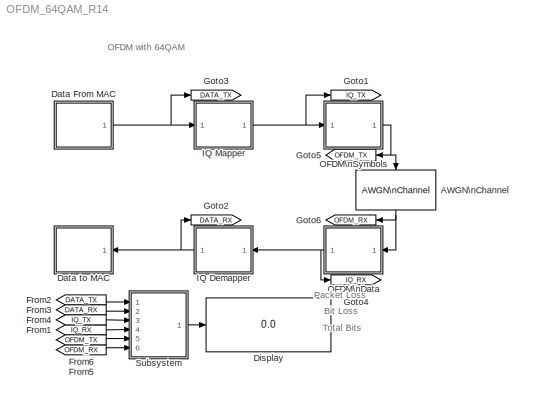
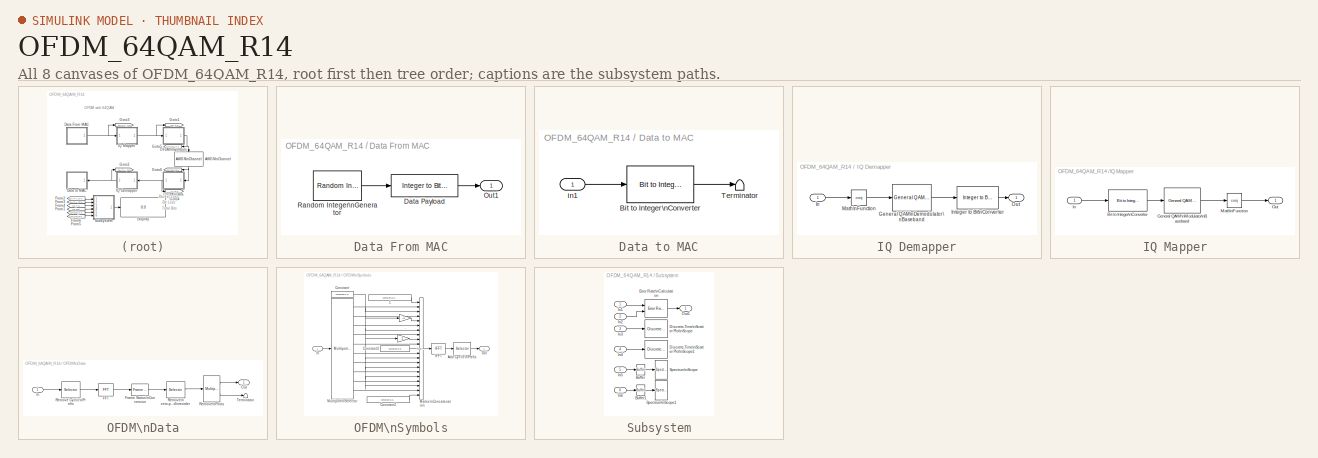
[diagram: thumbnail index - all 8 canvases of the model, root first then tree order]
MODEL OFDM_64QAM_R14
KIND model
BLOCK [Reference] AWGN\nChannel  REF=commchan2/AWGN\nChannel
  EbNodB = 10
  EsNodB = 40
  FunctionWithSeparateData = off
  Ports = [1, 1]
  Ps = 0.01
  RTWMemSecDataConstants = Inherit from model
  RTWMemSecDataInternal = Inherit from model
  RTWMemSecDataParameters = Inherit from model
  RTWMemSecFuncExecute = Inherit from model
  RTWMemSecFuncInitTerm = Inherit from model
  SID = 1
  SNRdB = 60
  ShowPortLabels = FromPortIcon
  SourceBlock = commchan2/AWGN\nChannel
  SourceProductBaseCode = CM
  SourceProductName = Communications Toolbox
  SourceType = AWGN Channel
  SystemSampleTime = -1
  Tsym = 4e-6/80
  bitsPerSym = 2
  noiseMode = Signal to noise ratio  (SNR)
  seed = 1
  variance = 1
BLOCK [SubSystem] Data From MAC
  Ports = [0, 1]
  RequestExecContextInheritance = off
  SID = 2
BLOCK [Reference] Data From MAC/Data Payload  REF=commutil2/Integer to Bit\nConverter
  Ports = [1, 1]
  SID = 3
  SourceBlock = commutil2/Integer to Bit\nConverter
  SourceProductBaseCode = CM
  SourceProductName = Communications Toolbox
  SourceType = Integer to Bit Converter
  nbits = 6
BLOCK [Outport] Data From MAC/Out1
  IconDisplay = Port number
  SID = 5
BLOCK [Reference] Data From MAC/Random Integer\nGenerator  REF=commrandsrc2/Random Integer\nGenerator
  FunctionWithSeparateData = off
  Ports = [0, 1]
  RTWMemSecDataConstants = Inherit from model
  RTWMemSecDataInternal = Inherit from model
  RTWMemSecDataParameters = Inherit from model
  RTWMemSecFuncExecute = Inherit from model
  RTWMemSecFuncInitTerm = Inherit from model
  SID = 4
  ShowPortLabels = FromPortIcon
  SourceBlock = commrandsrc2/Random Integer\nGenerator
  SourceProductBaseCode = CM
  SourceProductName = Communications Toolbox
  SourceType = Random Integer Generator
  SystemSampleTime = -1
  Ts = 1/192
  frameBased = on
  mul = 32
  orient = off
  sampPerFrame = 192
  seed = 37
BLOCK [SubSystem] Data to MAC
  Ports = [1]
  RequestExecContextInheritance = off
  SID = 6
BLOCK [Reference] Data to MAC/Bit to Integer\nConverter  REF=commutil2/Bit to Integer\nConverter
  Ports = [1, 1]
  SID = 8
  SourceBlock = commutil2/Bit to Integer\nConverter
  SourceProductBaseCode = CM
  SourceProductName = Communications Toolbox
  SourceType = Bit to Integer Converter
  nbits = 6
BLOCK [Terminator] Data to MAC/Terminator
  SID = 9
BLOCK [Inport] Data to MAC/in1
  IconDisplay = Port number
  SID = 7
BLOCK [Display] Display
  Decimation = 1
  Format = long
  Ports = [1]
  SID = 10
BLOCK [From] From1
  CloseFcn = tagdialog Close
  GotoTag = IQ_RX
  IconDisplay = Signal name
  SID = 11
BLOCK [From] From2
  CloseFcn = tagdialog Close
  GotoTag = DATA_TX
  IconDisplay = Signal name
  SID = 12
BLOCK [From] From3
  CloseFcn = tagdialog Close
  GotoTag = DATA_RX
  IconDisplay = Signal name
  SID = 13
BLOCK [From] From4
  CloseFcn = tagdialog Close
  GotoTag = IQ_TX
  IconDisplay = Signal name
  SID = 14
BLOCK [From] From5
  CloseFcn = tagdialog Close
  GotoTag = OFDM_RX
  IconDisplay = Signal name
  SID = 15
BLOCK [From] From6
  CloseFcn = tagdialog Close
  GotoTag = OFDM_TX
  IconDisplay = Signal name
  SID = 16
BLOCK [Goto] Goto1
  GotoTag = IQ_TX
  IconDisplay = Signal name
  SID = 17
  TagVisibility = global
BLOCK [Goto] Goto2
  GotoTag = DATA_RX
  IconDisplay = Signal name
  SID = 18
  TagVisibility = global
BLOCK [Goto] Goto3
  GotoTag = DATA_TX
  IconDisplay = Signal name
  SID = 19
  TagVisibility = global
BLOCK [Goto] Goto4
  GotoTag = IQ_RX
  IconDisplay = Signal name
  SID = 20
  TagVisibility = global
BLOCK [Goto] Goto5
  GotoTag = OFDM_TX
  IconDisplay = Signal name
  SID = 21
  TagVisibility = global
BLOCK [Goto] Goto6
  GotoTag = OFDM_RX
  IconDisplay = Signal name
  SID = 22
  TagVisibility = global
BLOCK [SubSystem] IQ Demapper
  Ports = [1, 1]
  RequestExecContextInheritance = off
  SID = 23
BLOCK [Reference] IQ Demapper/General QAM\nDemodulator\nBaseband  REF=commdigbbndam2/General QAM\nDemodulator\nBaseband
  Ports = [1, 1]
  SID = 25
  SigCon = [0.4629 + 0.4629i    0.4629 + 0.1543i    0.4629 + 0.7715i    0.4629 + 1.0801i    0.4629 - 0.4629i    0.4629 - 0.1543i    0.4629 - 0.7715i    0.4629 - 1.0801i    0.1543 + 0.4629i    0.1543 + 0.1543i    0.1543 + 0.7715i    0.1543 + 1.0801i    0.1543 - 0.4629i    0.1543 - 0.1543i    0.1543 - 0.7715i    0.1543 - 1.0801i    0.7715 + 0.4629i    0.7715 + 0.1543i    0.7715 + 0.7715i    0.7715 + 1.0801i   ...<+879ch>
  SourceBlock = commdigbbndam2/General QAM\nDemodulator\nBaseband
  SourceType = General QAM Demodulator Baseband
  numSamp = 1
BLOCK [Inport] IQ Demapper/In
  IconDisplay = Port number
  SID = 24
BLOCK [Reference] IQ Demapper/Integer to Bit\nConverter  REF=commutil2/Integer to Bit\nConverter
  Ports = [1, 1]
  SID = 26
  SourceBlock = commutil2/Integer to Bit\nConverter
  SourceProductBaseCode = CM
  SourceProductName = Communications Toolbox
  SourceType = Integer to Bit Converter
  nbits = 6
BLOCK [Math] IQ Demapper/Math\nFunction
  Operator = conj
  Ports = [1, 1]
  SID = 27
BLOCK [Outport] IQ Demapper/Out
  IconDisplay = Port number
  SID = 28
BLOCK [SubSystem] IQ Mapper
  Ports = [1, 1]
  RequestExecContextInheritance = off
  SID = 29
BLOCK [Reference] IQ Mapper/Bit to Integer\nConverter  REF=commutil2/Bit to Integer\nConverter
  Ports = [1, 1]
  SID = 31
  SourceBlock = commutil2/Bit to Integer\nConverter
  SourceProductBaseCode = CM
  SourceProductName = Communications Toolbox
  SourceType = Bit to Integer Converter
  nbits = 6
BLOCK [Reference] IQ Mapper/General QAM\nModulator\nBaseband  REF=commdigbbndam2/General QAM\nModulator\nBaseband
  Ports = [1, 1]
  SID = 32
  SigCon = [0.4629 + 0.4629i    0.4629 + 0.1543i    0.4629 + 0.7715i    0.4629 + 1.0801i    0.4629 - 0.4629i    0.4629 - 0.1543i    0.4629 - 0.7715i    0.4629 - 1.0801i    0.1543 + 0.4629i    0.1543 + 0.1543i    0.1543 + 0.7715i    0.1543 + 1.0801i    0.1543 - 0.4629i    0.1543 - 0.1543i    0.1543 - 0.7715i    0.1543 - 1.0801i    0.7715 + 0.4629i    0.7715 + 0.1543i    0.7715 + 0.7715i    0.7715 + 1.0801i   ...<+879ch>
  SourceBlock = commdigbbndam2/General QAM\nModulator\nBaseband
  SourceType = General QAM Modulator Baseband
  numSamp = 1
BLOCK [Inport] IQ Mapper/In
  IconDisplay = Port number
  SID = 30
BLOCK [Math] IQ Mapper/Math\nFunction
  Operator = conj
  Ports = [1, 1]
  SID = 33
BLOCK [Outport] IQ Mapper/Out
  IconDisplay = Port number
  SID = 34
BLOCK [SubSystem] OFDM\nData
  Ports = [1, 1]
  RequestExecContextInheritance = off
  SID = 35
BLOCK [Reference] OFDM\nData/FFT  REF=dspxfrm3/FFT
  BitRevOrder = off
  CompMethod = Table lookup
  FFTLength = 64
  InheritFFTLength = on
  LockScale = off
  Ports = [1, 1]
  SID = 37
  SkipNorm = on
  SourceBlock = dspxfrm3/FFT
  SourceProductBaseCode = DS
  SourceProductName = DSP System Toolbox
  SourceType = FFT
  TableOpt = Speed
  accumFracLength = 30
  accumMode = Inherit via internal rule
  accumWordLength = 32
  additionalParams = off
  allowOverrides = on
  firstCoeffFracLength = 15
  firstCoeffMode = Same word length as input
  firstCoeffWordLength = 16
  outputFracLength = 15
  outputMode = Inherit via internal rule
  outputWordLength = 16
  overflowMode = off
  prodOutputFracLength = 30
  prodOutputMode = Inherit via internal rule
  prodOutputWordLength = 32
  roundingMode = Floor
BLOCK [Reference] OFDM\nData/Frame Status\nConversion  REF=dspobslib/Frame Status\nConversion
  FunctionWithSeparateData = off
  Ports = [1, 1]
  RTWMemSecDataConstants = Inherit from model
  RTWMemSecDataInternal = Inherit from model
  RTWMemSecDataParameters = Inherit from model
  RTWMemSecFuncExecute = Inherit from model
  RTWMemSecFuncInitTerm = Inherit from model
  SID = 38
  ShowPortLabels = none
  SourceBlock = dspobslib/Frame Status\nConversion
  SourceProductBaseCode = DS
  SourceProductName = DSP System Toolbox
  SourceType = Frame Status Conversion
  SystemSampleTime = -1
  growRefPort = off
  outframe = Frame-based
BLOCK [Inport] OFDM\nData/In
  IconDisplay = Port number
  SID = 36
BLOCK [Outport] OFDM\nData/Out
  IconDisplay = Port number
  SID = 43
BLOCK [Selector] OFDM\nData/Remove Cyclic\nPrefix
  IndexOptions = Index vector (dialog)
  Indices = [65:320]
  InputPortWidth = 320
  OutputSizes = [(-2)]
  Ports = [1, 1]
  SID = 41
BLOCK [Selector] OFDM\nData/Remove\n zero-padding\nand\nreorder
  IndexOptions = Index vector (dialog)
  Indices = [29:128 130:229]
  InputPortWidth = 256
  OutputSizes = [(-2)]
  Ports = [1, 1]
  SID = 39
BLOCK [Reference] OFDM\nData/Remove\nPilots  REF=dspindex/Multiport\nSelector
  Ports = [1, 2]
  SID = 40
  SourceBlock = dspindex/Multiport\nSelector
  SourceProductBaseCode = DS
  SourceProductName = DSP System Toolbox
  SourceType = Multiport Selector
  idxCellArray = {[1:12 14:37 39:62 64:87 89:112 114:137 139:162 164:187 189:200],[13 38 63 88 113 138 163 188]}
  idxErrMode = Clip Index
  rowsOrCols = Rows
BLOCK [Terminator] OFDM\nData/Terminator
  SID = 42
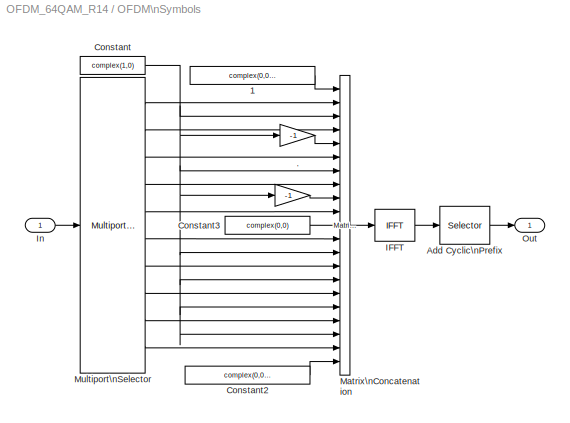
BLOCK [SubSystem] OFDM\nSymbols
  Ports = [1, 1]
  RequestExecContextInheritance = off
  SID = 44
BLOCK [Gain] OFDM\nSymbols/ 
  Gain = -1
  OutDataTypeStr = Inherit: Inherit via internal rule
  ParamDataTypeStr = Inherit: Inherit via internal rule
  SID = 46
  SaturateOnIntegerOverflow = off
BLOCK [Constant] OFDM\nSymbols/ 1
  SID = 47
  Value = complex(0,0)*ones(28,1)
BLOCK [Gain] OFDM\nSymbols/.
  Gain = -1
  OutDataTypeStr = Inherit: Inherit via internal rule
  ParamDataTypeStr = Inherit: Inherit via internal rule
  SID = 48
  SaturateOnIntegerOverflow = off
BLOCK [Selector] OFDM\nSymbols/Add Cyclic\nPrefix
  IndexOptions = Index vector (dialog)
  Indices = [193:256 1:256]
  InputPortWidth = 256
  OutputSizes = [(-2)]
  Ports = [1, 1]
  SID = 49
BLOCK [Constant] OFDM\nSymbols/Constant
  SID = 50
  Value = complex(1,0)
BLOCK [Constant] OFDM\nSymbols/Constant2
  SID = 51
  Value = complex(0,0)*ones(27,1)
BLOCK [Constant] OFDM\nSymbols/Constant3
  SID = 52
  Value = complex(0,0)
BLOCK [Reference] OFDM\nSymbols/IFFT  REF=dspxfrm3/IFFT
  BitRevOrder = off
  CompMethod = Table lookup
  FFTLength = 64
  InheritFFTLength = on
  LockScale = off
  Ports = [1, 1]
  SID = 53
  SkipNorm = off
  SourceBlock = dspxfrm3/IFFT
  SourceProductBaseCode = DS
  SourceProductName = DSP System Toolbox
  SourceType = IFFT
  TableOpt = Speed
  accumFracLength = 30
  accumMode = Inherit via internal rule
  accumWordLength = 32
  additionalParams = off
  allowOverrides = on
  cs_in = off
  firstCoeffFracLength = 15
  firstCoeffMode = Same word length as input
  firstCoeffWordLength = 16
  mode = Complex
  outputFracLength = 15
  outputMode = Inherit via internal rule
  outputWordLength = 16
  overflowMode = off
  prodOutputFracLength = 30
  prodOutputMode = Inherit via internal rule
  prodOutputWordLength = 32
  roundingMode = Floor
BLOCK [Inport] OFDM\nSymbols/In
  IconDisplay = Port number
  SID = 45
BLOCK [Reference] OFDM\nSymbols/Matrix\nConcatenation  REF=simulink/Math\nOperations/Matrix\nConcatenation
  Ports = [21, 1]
  SID = 54
  SourceBlock = simulink/Math\nOperations/Matrix\nConcatenation
  SourceProductBaseCode = SL
  SourceProductName = Simulink
  SourceType = Matrix Concatenation
  catMethod = Vertical
  numInports = 21
BLOCK [Reference] OFDM\nSymbols/Multiport\nSelector  REF=dspindex/Multiport\nSelector
  Ports = [1, 10]
  SID = 55
  SourceBlock = dspindex/Multiport\nSelector
  SourceProductBaseCode = DS
  SourceProductName = DSP System Toolbox
  SourceType = Multiport Selector
  idxCellArray = {1:12, 13:36, 37:60, 61:84, 85:96, 97:108, 109:132, 133:156, 157:180, 181:192}
  idxErrMode = Clip Index
  rowsOrCols = Rows
BLOCK [Outport] OFDM\nSymbols/Out
  IconDisplay = Port number
  SID = 56
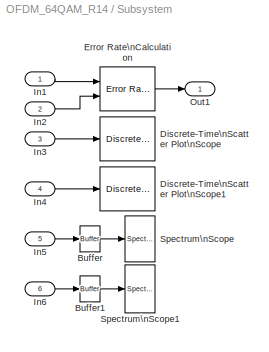
BLOCK [SubSystem] Subsystem
  Ports = [6, 1]
  RequestExecContextInheritance = off
  SID = 57
BLOCK [Reference] Subsystem/Buffer  REF=dspbuff3/Buffer
  N = 256
  Ports = [1, 1]
  SID = 64
  SourceBlock = dspbuff3/Buffer
  SourceProductBaseCode = DS
  SourceProductName = DSP System Toolbox
  SourceType = Buffer
  V = 0
  ic = 0
BLOCK [Reference] Subsystem/Buffer1  REF=dspbuff3/Buffer
  N = 256
  Ports = [1, 1]
  SID = 65
  SourceBlock = dspbuff3/Buffer
  SourceProductBaseCode = DS
  SourceProductName = DSP System Toolbox
  SourceType = Buffer
  V = 0
  ic = 0
BLOCK [Reference] Subsystem/Discrete-Time\nScatter Plot\nScope  REF=commsink2/Discrete-Time\nScatter Plot\nScope
  AxisGrid = on
  FigPos = get(0,'defaultfigureposition');
  FrameNumber = off
  FunctionWithSeparateData = off
  LineColors = b
  LineMarkers = .
  Ports = [1]
  RTWMemSecDataConstants = Inherit from model
  RTWMemSecDataInternal = Inherit from model
  RTWMemSecDataParameters = Inherit from model
  RTWMemSecFuncExecute = Inherit from model
  RTWMemSecFuncInitTerm = Inherit from model
  SID = 66
  ShowPortLabels = FromPortIcon
  SourceBlock = commsink2/Discrete-Time\nScatter Plot\nScope
  SourceProductBaseCode = CM
  SourceProductName = Communications Toolbox
  SourceType = Discrete-Time Scatter Plot Scope
  SystemSampleTime = -1
  Tag = ScatterPlot
  block_type_ = scatter
  fading = on
  figTitle = Scatter Plot
  inphaseLabel = In-phase Amplitude
  numLinesMax = 8
  numNewFrames = 64
  numTraces = 64
  offsetEye = 0
  openScopeAtSimStart = on
  quadratureLabel = Quadrature Amplitude
  render = on
  sampPerSymb = 1
  xMax = 1.80920677830553
  xMin = -0.572465428359361
  yMax = 1.19353641195678
  yMin = -1.18813579470811
BLOCK [Reference] Subsystem/Discrete-Time\nScatter Plot\nScope1  REF=commsink2/Discrete-Time\nScatter Plot\nScope
  AxisGrid = on
  FigPos = get(0,'defaultfigureposition');
  FrameNumber = off
  FunctionWithSeparateData = off
  LineColors = b
  LineMarkers = .
  Ports = [1]
  RTWMemSecDataConstants = Inherit from model
  RTWMemSecDataInternal = Inherit from model
  RTWMemSecDataParameters = Inherit from model
  RTWMemSecFuncExecute = Inherit from model
  RTWMemSecFuncInitTerm = Inherit from model
  SID = 67
  ShowPortLabels = FromPortIcon
  SourceBlock = commsink2/Discrete-Time\nScatter Plot\nScope
  SourceProductBaseCode = CM
  SourceProductName = Communications Toolbox
  SourceType = Discrete-Time Scatter Plot Scope
  SystemSampleTime = -1
  Tag = ScatterPlot
  block_type_ = scatter
  fading = on
  figTitle = Scatter Plot
  inphaseLabel = In-phase Amplitude
  numLinesMax = 8
  numNewFrames = 64
  numTraces = 64
  offsetEye = 0
  openScopeAtSimStart = on
  quadratureLabel = Quadrature Amplitude
  render = on
  sampPerSymb = 1
  xMax = 1.80920678102707
  xMin = -0.572465430165662
  yMax = 1.19353641371785
  yMin = -1.18813579747488
BLOCK [Reference] Subsystem/Error Rate\nCalculation  REF=commsink2/Error Rate\nCalculation
  N = 0
  PMode = Port
  Ports = [2, 1]
  RsMode2 = off
  SID = 68
  SourceBlock = commsink2/Error Rate\nCalculation
  SourceProductBaseCode = CM
  SourceProductName = Communications Toolbox
  SourceType = Error Rate Calculation
  WsName = grayBER
  cp_mode = Entire frame
  maxBits = 10000000
  numErr = 1000000000
  st_delay = 0
  stop = on
  subframe = []
BLOCK [Inport] Subsystem/In1
  IconDisplay = Port number
  SID = 58
BLOCK [Inport] Subsystem/In2
  IconDisplay = Port number
  Port = 2
  SID = 59
BLOCK [Inport] Subsystem/In3
  IconDisplay = Port number
  Port = 3
  SID = 60
BLOCK [Inport] Subsystem/In4
  IconDisplay = Port number
  Port = 4
  SID = 61
BLOCK [Inport] Subsystem/In5
  IconDisplay = Port number
  Port = 5
  SID = 62
BLOCK [Inport] Subsystem/In6
  IconDisplay = Port number
  Port = 6
  SID = 63
BLOCK [Outport] Subsystem/Out1
  IconDisplay = Port number
  SID = 71
BLOCK [Reference] Subsystem/Spectrum\nScope  REF=dspsnks4/Spectrum\nScope
  AxisGrid = off
  AxisLegend = off
  AxisProperties = off
  AxisZoom = off
  BufferSize = 1024
  DisplayProperties = off
  Domain = Frequency
  FFTlength = 1024
  FigPos = get(0,'defaultfigureposition')
  FrameNumber = off
  FunctionWithSeparateData = off
  HorizSpan = 1
  InheritXIncr = on
  LineProperties = off
  Memory = off
  OpenScopeAtSimStart = on
  OpenScopeImmediately = off
  Overlap = 0
  Ports = [1]
  RTWMemSecDataConstants = Inherit from model
  RTWMemSecDataInternal = Inherit from model
  RTWMemSecDataParameters = Inherit from model
  RTWMemSecFuncExecute = Inherit from model
  RTWMemSecFuncInitTerm = Inherit from model
  RsSpecScope = 50
  SID = 69
  ScopeProperties = on
  ShowPortLabels = none
  SourceBlock = dspsnks4/Spectrum\nScope
  SourceProductBaseCode = DS
  SourceProductName = DSP System Toolbox
  SourceType = Spectrum Scope
  SystemSampleTime = -1
  UseBuffer = on
  XIncr = 1.0
  XLabel = Samples
  XLimit = Auto
  XMax = 1
  XMin = 0
  XRange = [0...Fs/2]
  XUnits = Hertz
  YLabel = Magnitude-squared, dB
  YMax = -17.4535357375183
  YMin = -49.5851620683178
  YUnits = dB
  betaSpecScope = 5
  inpFftLenInherit = on
  numAvg = 5
  winsampSpecScope = Periodic
  wintypeSpecScope = Hann
BLOCK [Reference] Subsystem/Spectrum\nScope1  REF=dspsnks4/Spectrum\nScope
  AxisGrid = off
  AxisLegend = off
  AxisProperties = off
  AxisZoom = off
  BufferSize = 1024
  DisplayProperties = off
  Domain = Frequency
  FFTlength = 1024
  FigPos = get(0,'defaultfigureposition')
  FrameNumber = off
  FunctionWithSeparateData = off
  HorizSpan = 1
  InheritXIncr = on
  LineProperties = off
  Memory = off
  OpenScopeAtSimStart = on
  OpenScopeImmediately = off
  Overlap = 0
  Ports = [1]
  RTWMemSecDataConstants = Inherit from model
  RTWMemSecDataInternal = Inherit from model
  RTWMemSecDataParameters = Inherit from model
  RTWMemSecFuncExecute = Inherit from model
  RTWMemSecFuncInitTerm = Inherit from model
  RsSpecScope = 50
  SID = 70
  ScopeProperties = on
  ShowPortLabels = none
  SourceBlock = dspsnks4/Spectrum\nScope
  SourceProductBaseCode = DS
  SourceProductName = DSP System Toolbox
  SourceType = Spectrum Scope
  SystemSampleTime = -1
  UseBuffer = on
  XIncr = 1.0
  XLabel = Samples
  XLimit = Auto
  XMax = 1
  XMin = 0
  XRange = [0...Fs/2]
  XUnits = Hertz
  YLabel = Magnitude-squared, dB
  YMax = -17.1080597361603
  YMin = -51.7490793915629
  YUnits = dB
  betaSpecScope = 5
  inpFftLenInherit = on
  numAvg = 5
  winsampSpecScope = Periodic
  wintypeSpecScope = Hann
ANNOTATION (root): Bit Loss
ANNOTATION (root): OFDM with 64QAM
ANNOTATION (root): Packet Loss
ANNOTATION (root): Total Bits
NET AWGN\nChannel:1 -> Goto6:1, OFDM\nData:1
LINE Data From MAC/Data Payload:1 -> Data From MAC/Out1:1
LINE Data From MAC/Random Integer\nGenerator:1 -> Data From MAC/Data Payload:1
NET Data From MAC:1 -> Goto3:1, IQ Mapper:1
LINE Data to MAC/Bit to Integer\nConverter:1 -> Data to MAC/Terminator:1
LINE Data to MAC/in1:1 -> Data to MAC/Bit to Integer\nConverter:1
LINE From1:1 -> Subsystem:4
LINE From2:1 -> Subsystem:1
LINE From3:1 -> Subsystem:2
LINE From4:1 -> Subsystem:3
LINE From5:1 -> Subsystem:6
LINE From6:1 -> Subsystem:5
LINE IQ Demapper/General QAM\nDemodulator\nBaseband:1 -> IQ Demapper/Integer to Bit\nConverter:1
LINE IQ Demapper/In:1 -> IQ Demapper/Math\nFunction:1
LINE IQ Demapper/Integer to Bit\nConverter:1 -> IQ Demapper/Out:1
LINE IQ Demapper/Math\nFunction:1 -> IQ Demapper/General QAM\nDemodulator\nBaseband:1
NET IQ Demapper:1 -> Data to MAC:1, Goto2:1
LINE IQ Mapper/Bit to Integer\nConverter:1 -> IQ Mapper/General QAM\nModulator\nBaseband:1
LINE IQ Mapper/General QAM\nModulator\nBaseband:1 -> IQ Mapper/Math\nFunction:1
LINE IQ Mapper/In:1 -> IQ Mapper/Bit to Integer\nConverter:1
LINE IQ Mapper/Math\nFunction:1 -> IQ Mapper/Out:1
NET IQ Mapper:1 -> Goto1:1, OFDM\nSymbols:1
LINE OFDM\nData/FFT:1 -> OFDM\nData/Frame Status\nConversion:1
LINE OFDM\nData/Frame Status\nConversion:1 -> OFDM\nData/Remove\n zero-padding\nand\nreorder:1
LINE OFDM\nData/In:1 -> OFDM\nData/Remove Cyclic\nPrefix:1
LINE OFDM\nData/Remove Cyclic\nPrefix:1 -> OFDM\nData/FFT:1
LINE OFDM\nData/Remove\n zero-padding\nand\nreorder:1 -> OFDM\nData/Remove\nPilots:1
LINE OFDM\nData/Remove\nPilots:1 -> OFDM\nData/Out:1
LINE OFDM\nData/Remove\nPilots:2 -> OFDM\nData/Terminator:1
NET OFDM\nData:1 -> Goto4:1, IQ Demapper:1
LINE OFDM\nSymbols/ 1:1 -> OFDM\nSymbols/Matrix\nConcatenation:1
LINE OFDM\nSymbols/ :1 -> OFDM\nSymbols/Matrix\nConcatenation:9
LINE OFDM\nSymbols/.:1 -> OFDM\nSymbols/Matrix\nConcatenation:5
LINE OFDM\nSymbols/Add Cyclic\nPrefix:1 -> OFDM\nSymbols/Out:1
LINE OFDM\nSymbols/Constant2:1 -> OFDM\nSymbols/Matrix\nConcatenation:21
LINE OFDM\nSymbols/Constant3:1 -> OFDM\nSymbols/Matrix\nConcatenation:11
NET OFDM\nSymbols/Constant:1 -> OFDM\nSymbols/ :1, OFDM\nSymbols/.:1, OFDM\nSymbols/Matrix\nConcatenation:13, OFDM\nSymbols/Matrix\nConcatenation:15, OFDM\nSymbols/Matrix\nConcatenation:17, OFDM\nSymbols/Matrix\nConcatenation:19, OFDM\nSymbols/Matrix\nConcatenation:3, OFDM\nSymbols/Matrix\nConcatenation:7
LINE OFDM\nSymbols/IFFT:1 -> OFDM\nSymbols/Add Cyclic\nPrefix:1
LINE OFDM\nSymbols/In:1 -> OFDM\nSymbols/Multiport\nSelector:1
LINE OFDM\nSymbols/Matrix\nConcatenation:1 -> OFDM\nSymbols/IFFT:1
LINE OFDM\nSymbols/Multiport\nSelector:1 -> OFDM\nSymbols/Matrix\nConcatenation:2
LINE OFDM\nSymbols/Multiport\nSelector:10 -> OFDM\nSymbols/Matrix\nConcatenation:20
LINE OFDM\nSymbols/Multiport\nSelector:2 -> OFDM\nSymbols/Matrix\nConcatenation:4
LINE OFDM\nSymbols/Multiport\nSelector:3 -> OFDM\nSymbols/Matrix\nConcatenation:6
LINE OFDM\nSymbols/Multiport\nSelector:4 -> OFDM\nSymbols/Matrix\nConcatenation:8
LINE OFDM\nSymbols/Multiport\nSelector:5 -> OFDM\nSymbols/Matrix\nConcatenation:10
LINE OFDM\nSymbols/Multiport\nSelector:6 -> OFDM\nSymbols/Matrix\nConcatenation:12
LINE OFDM\nSymbols/Multiport\nSelector:7 -> OFDM\nSymbols/Matrix\nConcatenation:14
LINE OFDM\nSymbols/Multiport\nSelector:8 -> OFDM\nSymbols/Matrix\nConcatenation:16
LINE OFDM\nSymbols/Multiport\nSelector:9 -> OFDM\nSymbols/Matrix\nConcatenation:18
NET OFDM\nSymbols:1 -> AWGN\nChannel:1, Goto5:1
LINE Subsystem/Buffer1:1 -> Subsystem/Spectrum\nScope1:1
LINE Subsystem/Buffer:1 -> Subsystem/Spectrum\nScope:1
LINE Subsystem/Error Rate\nCalculation:1 -> Subsystem/Out1:1
LINE Subsystem/In1:1 -> Subsystem/Error Rate\nCalculation:1
LINE Subsystem/In2:1 -> Subsystem/Error Rate\nCalculation:2
LINE Subsystem/In3:1 -> Subsystem/Discrete-Time\nScatter Plot\nScope:1
LINE Subsystem/In4:1 -> Subsystem/Discrete-Time\nScatter Plot\nScope1:1
LINE Subsystem/In5:1 -> Subsystem/Buffer:1
LINE Subsystem/In6:1 -> Subsystem/Buffer1:1
LINE Subsystem:1 -> Display:1
note: NET lines group one-source signal fan-out (src -> all destinations, sorted); 1:1 wires keep LINE
